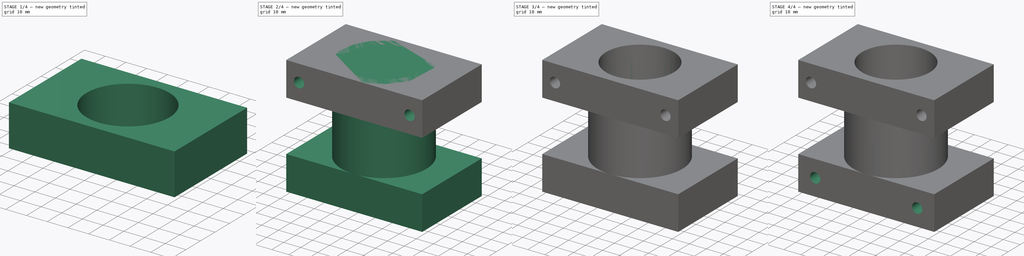
[diagram: build sequence overview — one tinted view per stage of 4, left to right]
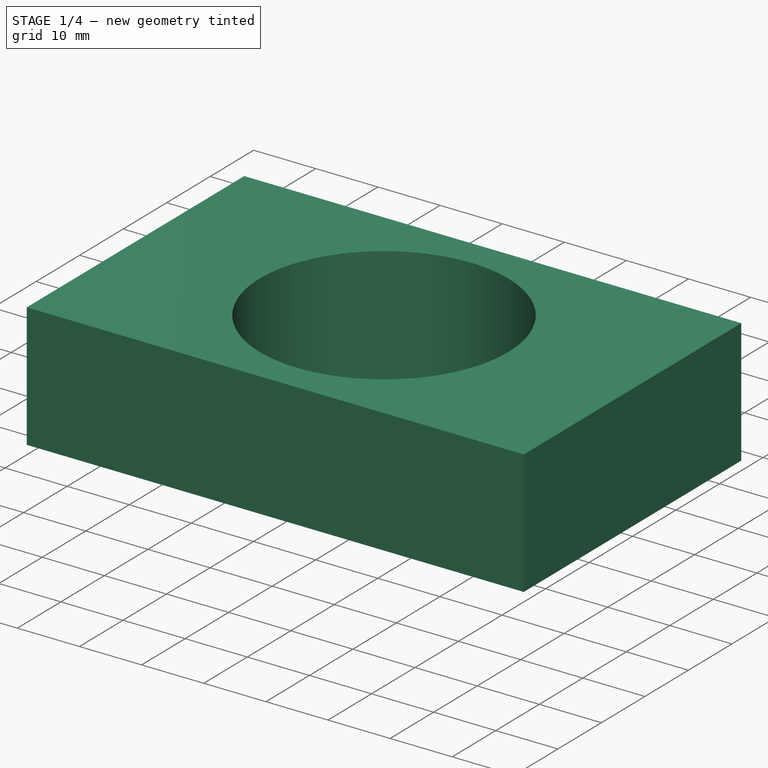
[diagram: stage 1 of 4 — iso view after this stage's code; geometry added in this stage tinted green]
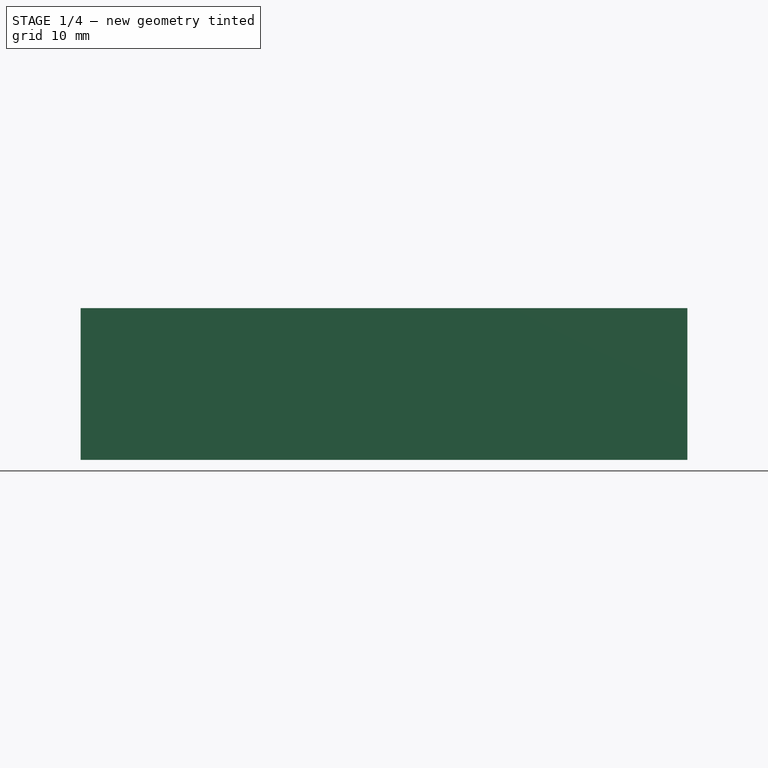
[diagram: stage 1 of 4 — front view after this stage's code; geometry added in this stage tinted green]
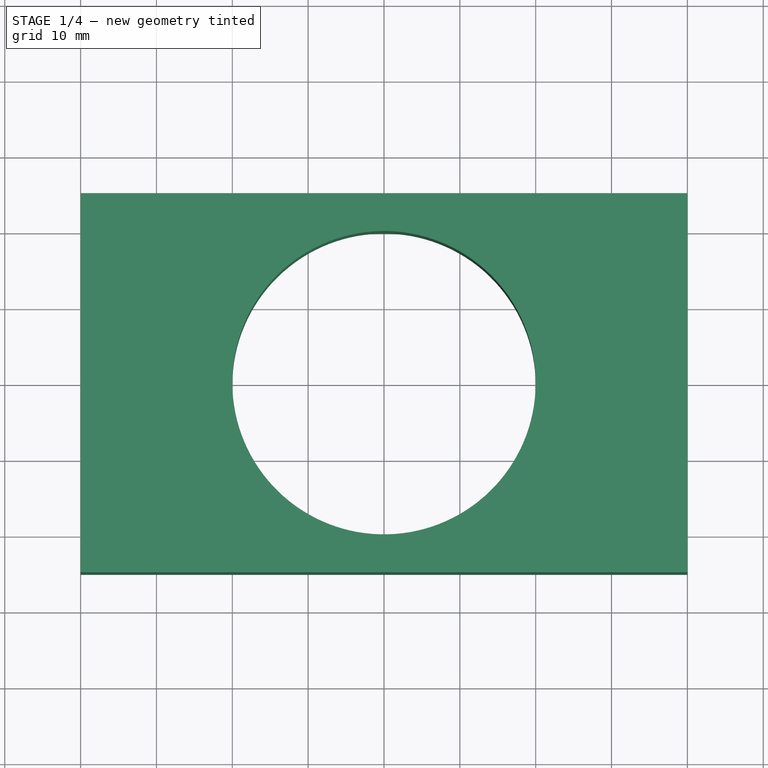
[diagram: stage 1 of 4 — top view after this stage's code; geometry added in this stage tinted green]
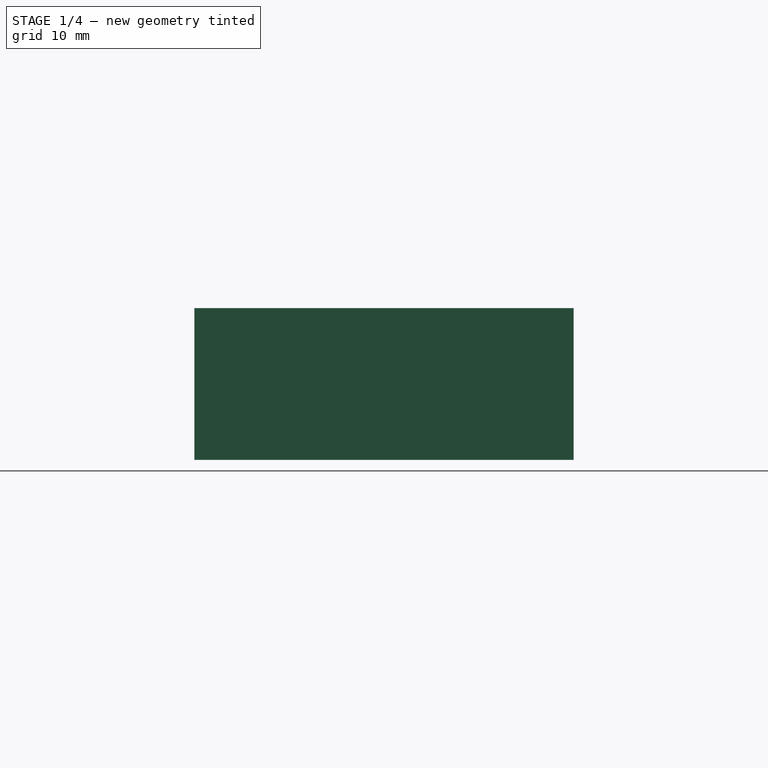
[diagram: stage 1 of 4 — right view after this stage's code; geometry added in this stage tinted green]
FCSTD DOCUMENT  (FreeCAD 0.16R6712 (Git))
Label: motor_case
License: All rights reserved
LicenseURL: http://en.wikipedia.org/wiki/All_rights_reserved
objects: Part::Cut×3, Sketcher::SketchObject×3, PartDesign::Pocket×3, Part::Cylinder×2, Part::Box×2, Part::Fuse×1
note: 17 computed .brp shape members not serialized (recipe doc carries the construction recipe); baked Part::Feature solids carry a one-line shape summary decoded from their .brp

FEATURE [Part::Cylinder] Cylinder
  Angle = 360
  Height = 60
  Placement = pos=(0,0,10) rot=(0,0,1;0rad)
  Radius = 20
FEATURE [Part::Box] Box001  label="Cube001"
  Height = 20
  Length = 80
  Placement = pos=(-40,-25,50) rot=(0,0,1;0rad)
  Width = 50
FEATURE [Part::Cut] Cut002
  Base = -> Box001
  Tool = -> Cylinder
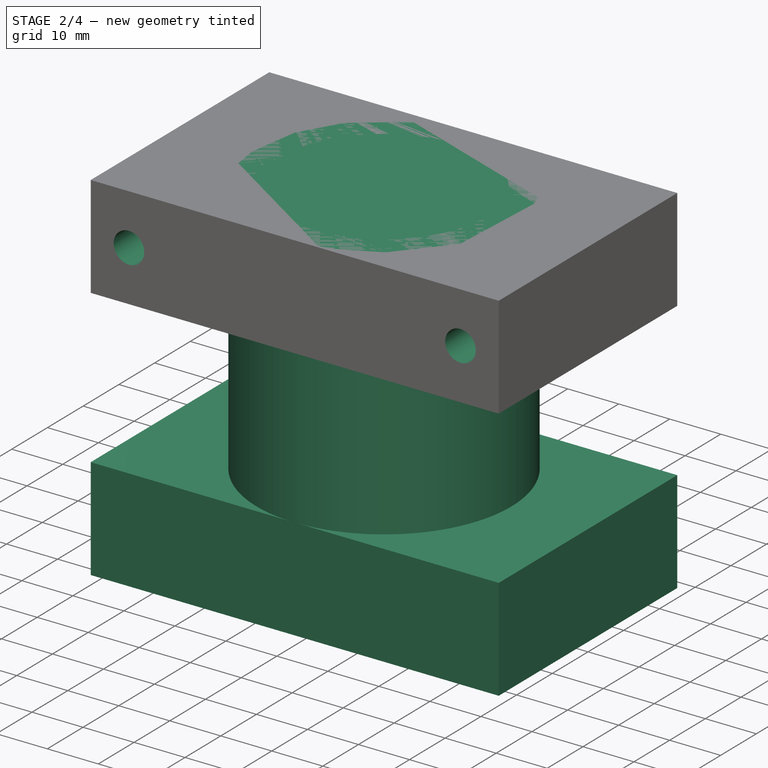
[diagram: stage 2 of 4 — iso view after this stage's code; geometry added in this stage tinted green]
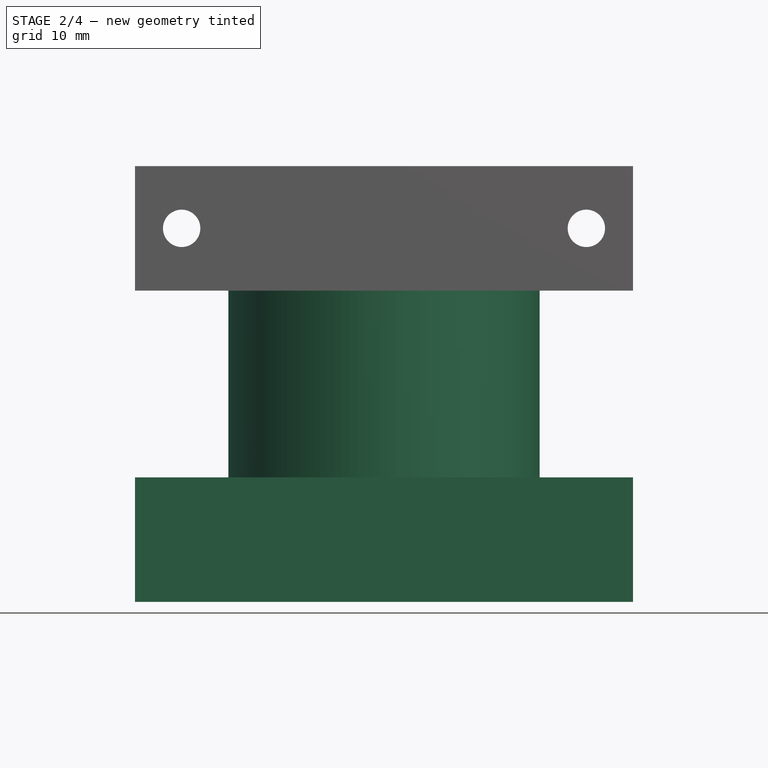
[diagram: stage 2 of 4 — front view after this stage's code; geometry added in this stage tinted green]
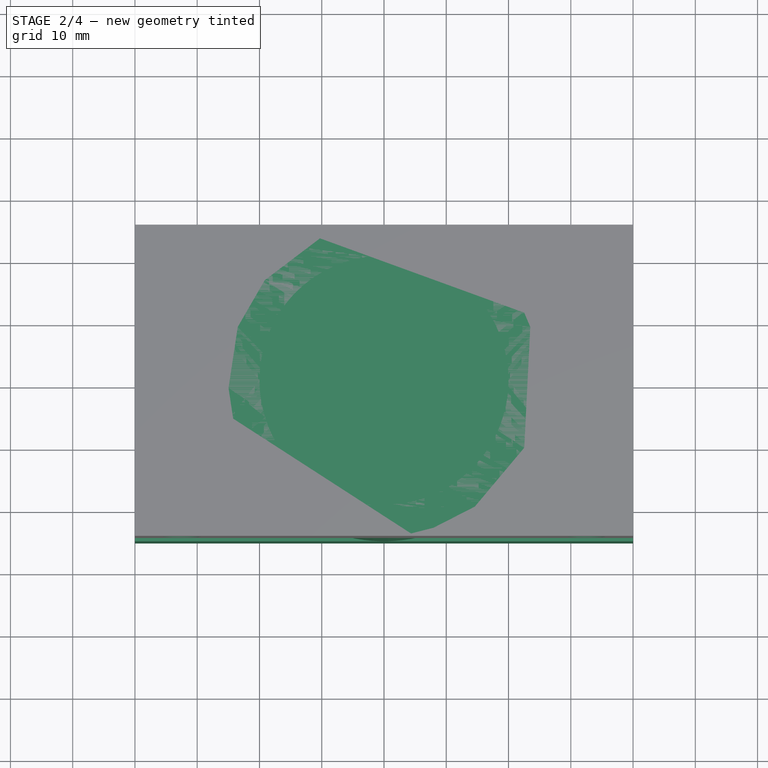
[diagram: stage 2 of 4 — top view after this stage's code; geometry added in this stage tinted green]
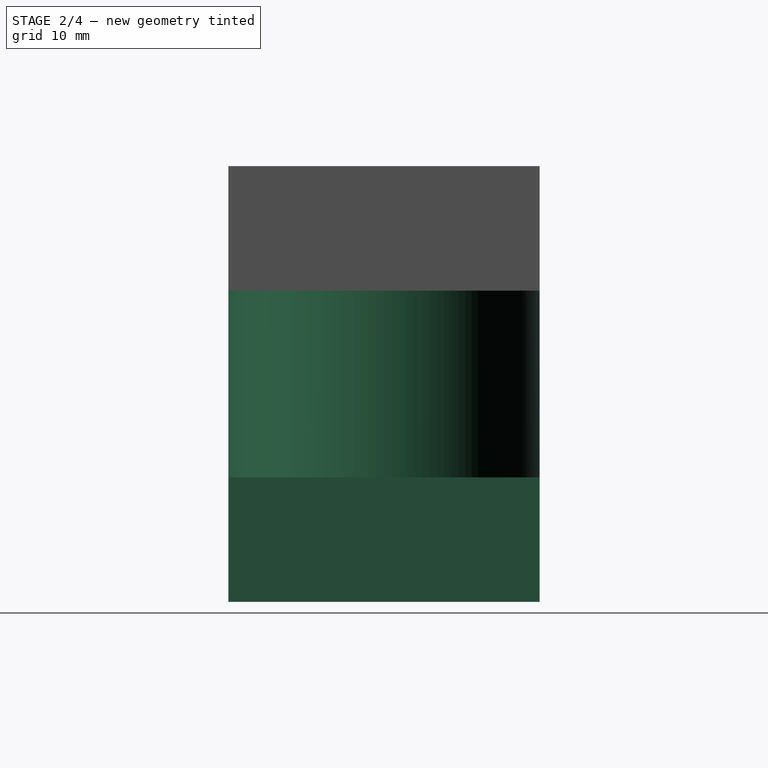
[diagram: stage 2 of 4 — right view after this stage's code; geometry added in this stage tinted green]
FEATURE [Part::Cylinder] Cylinder001
  Angle = 360
  Height = 70
  Radius = 25
FEATURE [Part::Box] Box  label="Cube"
  Height = 20
  Length = 80
  Placement = pos=(-40,-25,0) rot=(0,0,1;0rad)
  Width = 50
FEATURE [Sketcher::SketchObject] Sketch002
  ExternalGeometry = -> [Cut002]
  Placement = pos=(0,-25,0) rot=(1,0,0;1.5708rad)
  Support = -> Cut002 [Face2]
  sketch-geometry (2):
    g0: Circle CenterX=-32.5 CenterY=60 CenterZ=0 NormalX=0 NormalY=0 NormalZ=1 Radius=3
    g1: Circle CenterX=32.5 CenterY=60 CenterZ=0 NormalX=0 NormalY=0 NormalZ=1 Radius=3
  constraints (6):
    c: DistanceX(g-4,g0) = 7.5
    c: DistanceY(g0,g-4) = 10
    c: Radius(g0) = 3
    c: DistanceX(g1,g-6) = 7.5
    c: DistanceY(g1,g-6) = 10
    c: Radius(g1) = 3
FEATURE [PartDesign::Pocket] Pocket002
  Length = 5
  Sketch = -> Sketch002
  Type = 1
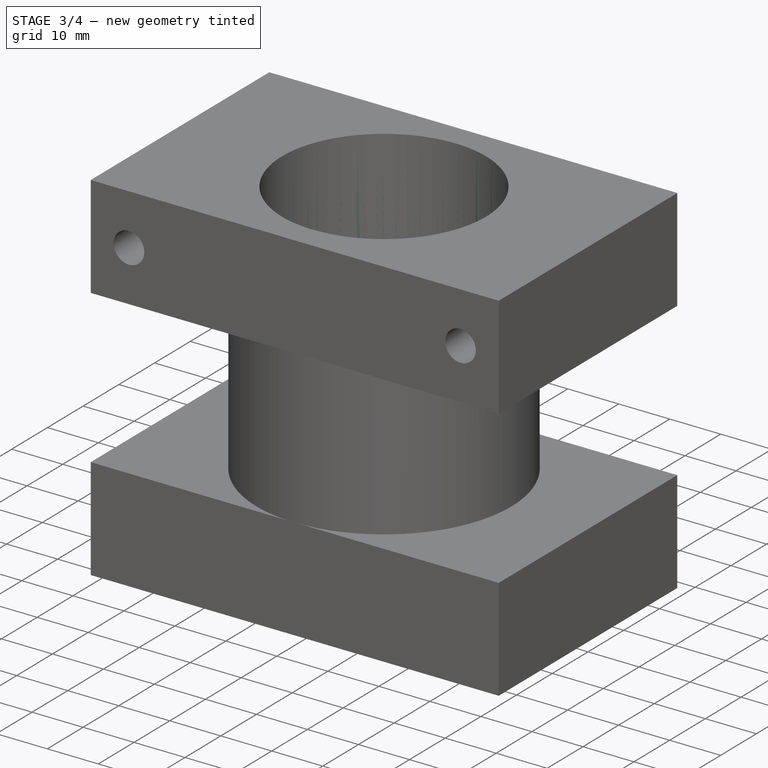
[diagram: stage 3 of 4 — iso view after this stage's code; geometry added in this stage tinted green]
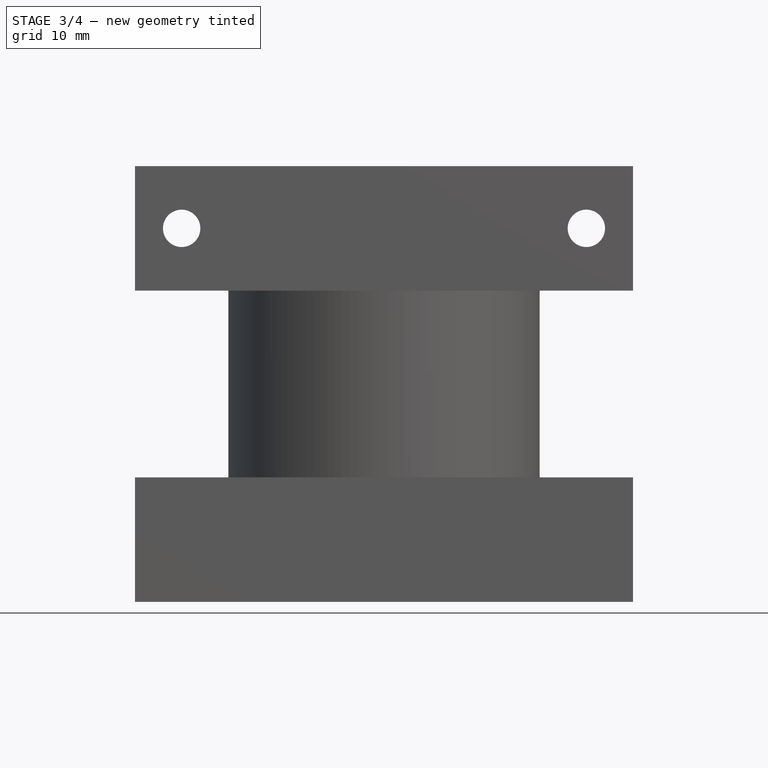
[diagram: stage 3 of 4 — front view after this stage's code; geometry added in this stage tinted green]
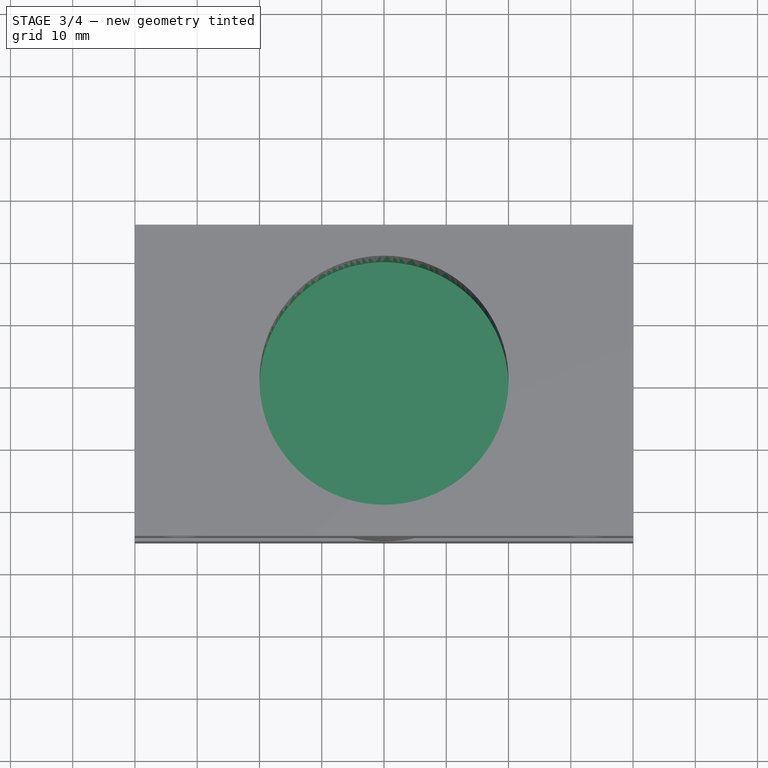
[diagram: stage 3 of 4 — top view after this stage's code; geometry added in this stage tinted green]
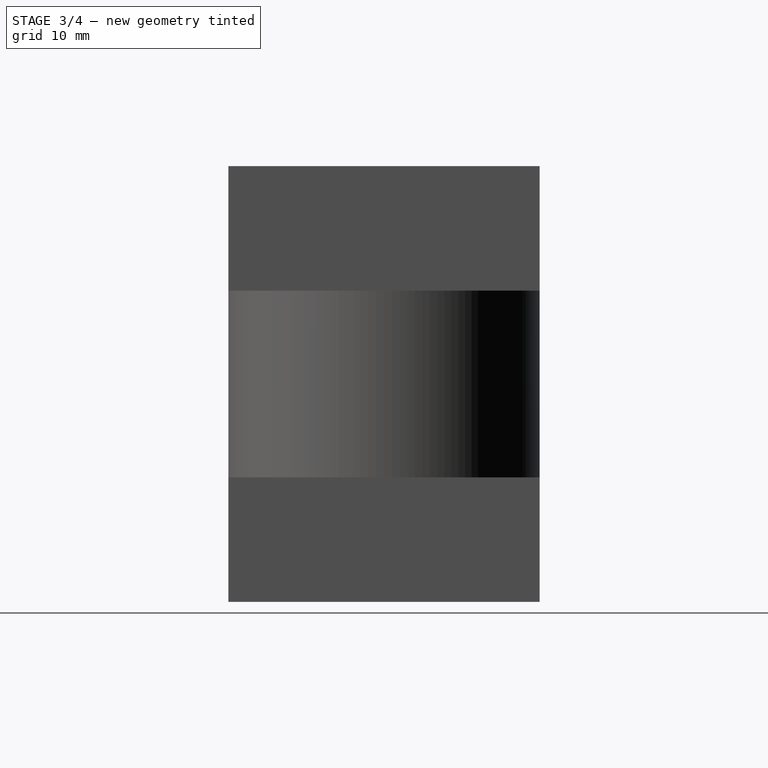
[diagram: stage 3 of 4 — right view after this stage's code; geometry added in this stage tinted green]
FEATURE [Part::Cut] Cut
  Base = -> Cylinder001
  Tool = -> Cylinder
FEATURE [Part::Cut] Cut001
  Base = -> Box
  Tool = -> Cylinder001
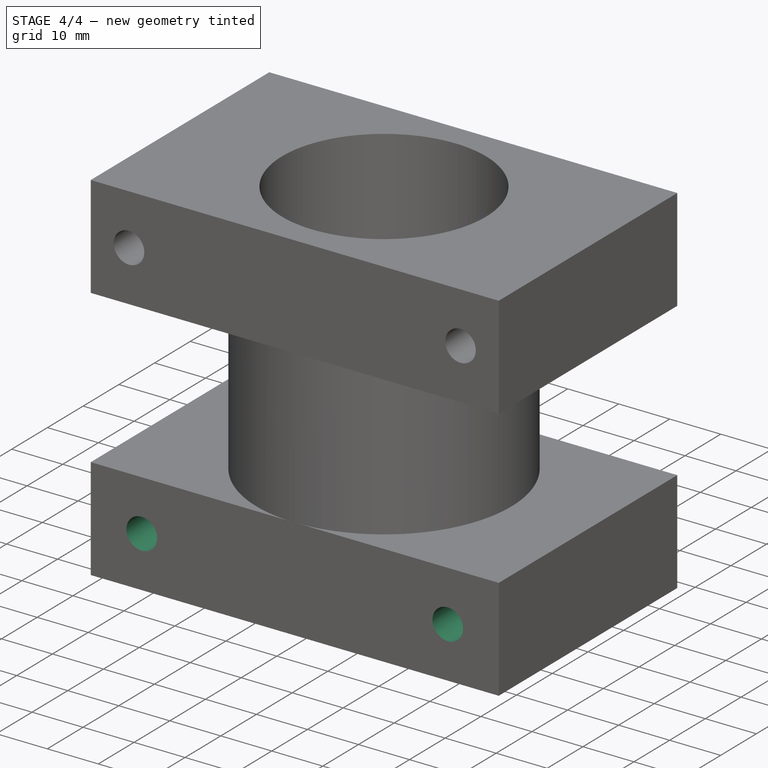
[diagram: stage 4 of 4 — iso view after this stage's code; geometry added in this stage tinted green]
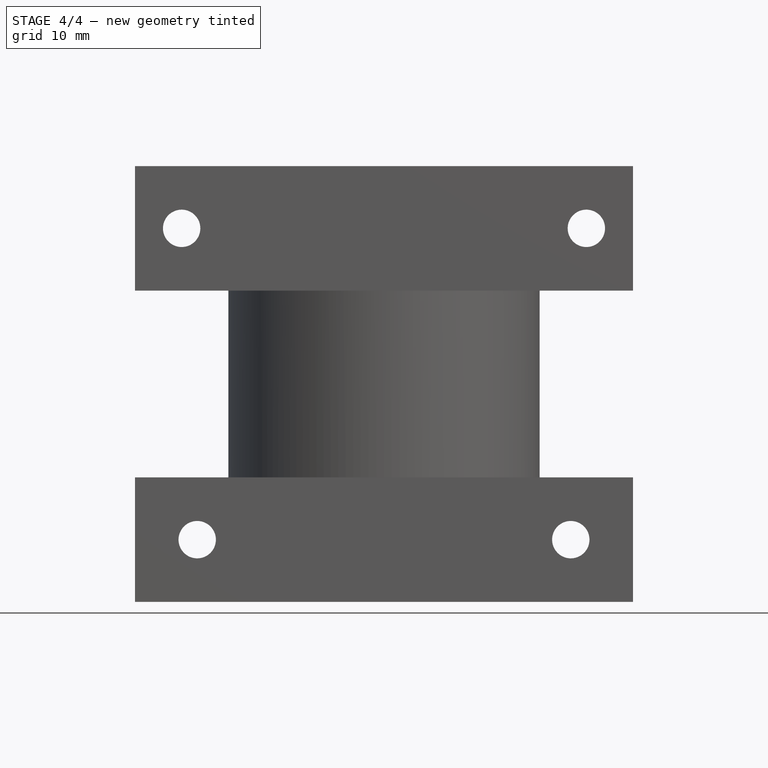
[diagram: stage 4 of 4 — front view after this stage's code; geometry added in this stage tinted green]
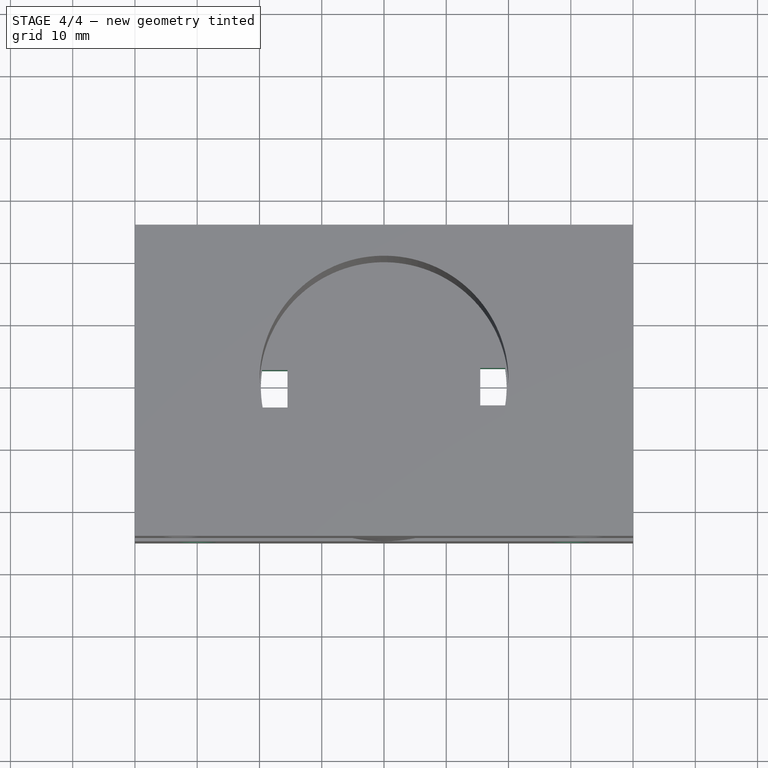
[diagram: stage 4 of 4 — top view after this stage's code; geometry added in this stage tinted green]
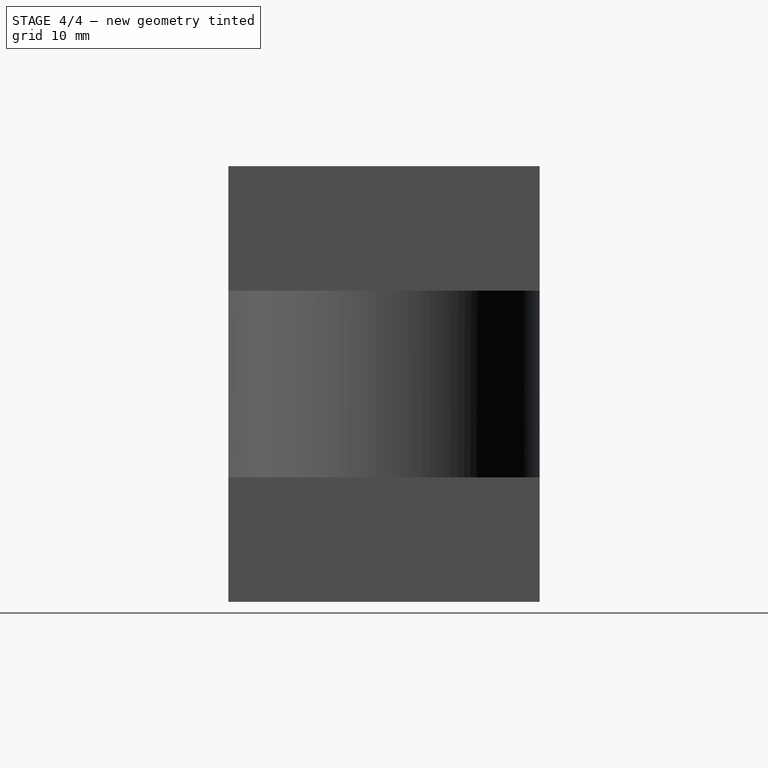
[diagram: stage 4 of 4 — right view after this stage's code; geometry added in this stage tinted green]
FEATURE [Part::Fuse] Fusion
  Base = -> Cut
  Tool = -> Cut001
FEATURE [Sketcher::SketchObject] Sketch
  ExternalGeometry = -> [Fusion]
  Placement = pos=(0,-25,0) rot=(1,0,0;1.5708rad)
  Support = -> Fusion [Face12]
  sketch-geometry (2):
    g0: Circle CenterX=-30 CenterY=10 CenterZ=0 NormalX=0 NormalY=0 NormalZ=1 Radius=3
    g1: Circle CenterX=30 CenterY=10 CenterZ=0 NormalX=0 NormalY=0 NormalZ=1 Radius=3
  constraints (2):
    c: Radius(g0) = 3
    c: Radius(g1) = 3
FEATURE [PartDesign::Pocket] Pocket
  Length = 5
  Sketch = -> Sketch
  Type = 1
FEATURE [Sketcher::SketchObject] Sketch001
  Placement = pos=(0,0,10) rot=(0,0,1;0rad)
  Support = -> Pocket [Face16]
  sketch-geometry (8):
    g0: LineSegment StartX=-19.5988 StartY=2.66333 StartZ=0 EndX=-15.4954 EndY=2.66333 EndZ=0
    g1: LineSegment StartX=-15.4954 StartY=2.66333 StartZ=0 EndX=-15.4954 EndY=-3.33667 EndZ=0
    g2: LineSegment StartX=-15.4954 StartY=-3.33667 StartZ=0 EndX=-19.4954 EndY=-3.33667 EndZ=0
    g3: LineSegment StartX=19.4654 StartY=3 StartZ=0 EndX=15.4654 EndY=3 EndZ=0
    g4: LineSegment StartX=15.4654 StartY=3 StartZ=0 EndX=15.4654 EndY=-3 EndZ=0
    g5: LineSegment StartX=15.4654 StartY=-3 StartZ=0 EndX=19.4654 EndY=-3 EndZ=0
    g6: ArcOfCircle CenterX=0 CenterY=0 CenterZ=0 NormalX=0 NormalY=0 NormalZ=1 Radius=19.7789 StartAngle=3.00653 EndAngle=3.3111
    g7: ArcOfCircle CenterX=0 CenterY=0 CenterZ=0 NormalX=0 NormalY=0 NormalZ=1 Radius=19.6952 StartAngle=6.13027 EndAngle=6.4361
  constraints (21):
    c: Coincident(g0,g1)
    c: Coincident(g1,g2)
    c: Horizontal(g0)
    c: Horizontal(g2)
    c: Vertical(g1)
    c: Coincident(g3,g4)
    c: Coincident(g4,g5)
    c: Horizontal(g3)
    c: Horizontal(g5)
    c: Vertical(g4)
    c: DistanceY(g1,g1) = 6
    c: DistanceY(g4,g4) = 6
    c: DistanceX(g2,g2) = 4
    c: DistanceX(g5,g5) = 4
    c: Coincident(g6,g-1)
    c: Coincident(g6,g0)
    c: Coincident(g6,g2)
    c: Coincident(g7,g-1)
    c: Coincident(g7,g3)
    c: Coincident(g7,g5)
    c: DistanceY(g4,g-1) = 3
FEATURE [PartDesign::Pocket] Pocket001
  Length = 5
  Sketch = -> Sketch001
  Type = 1
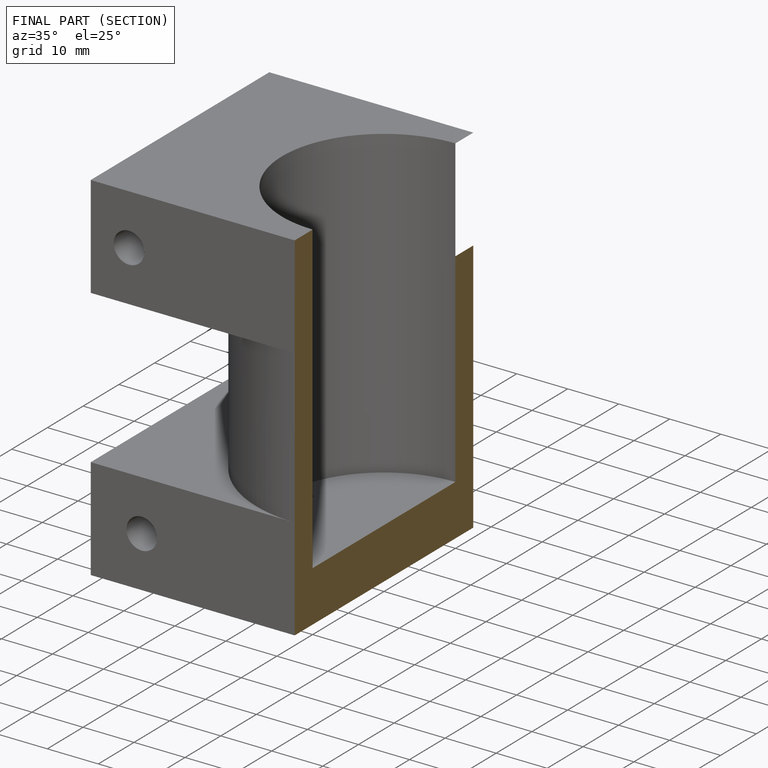
[diagram: finished part — half-section view (interior)]
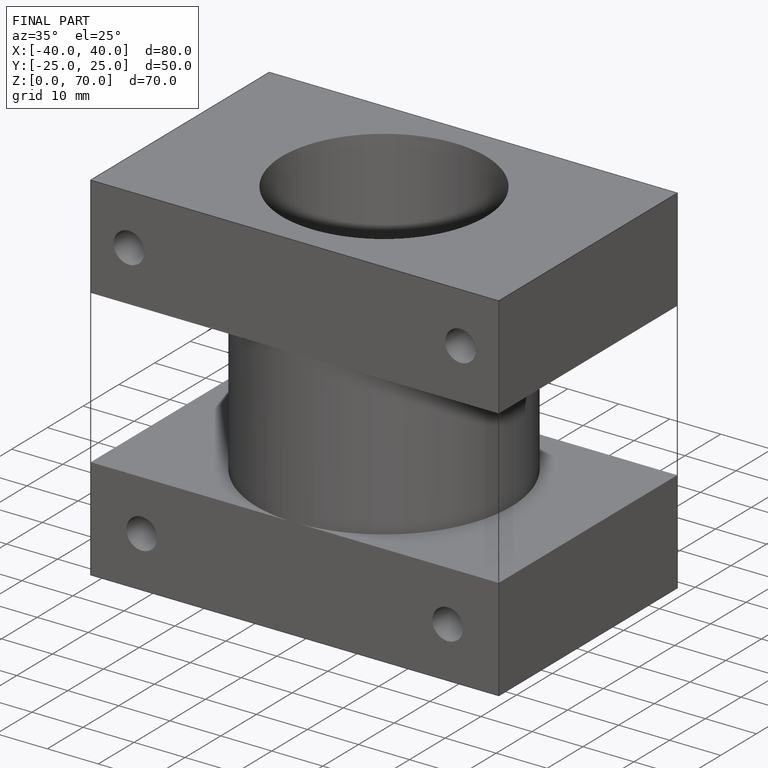
[diagram: finished part — iso view with bounding-box wireframe]
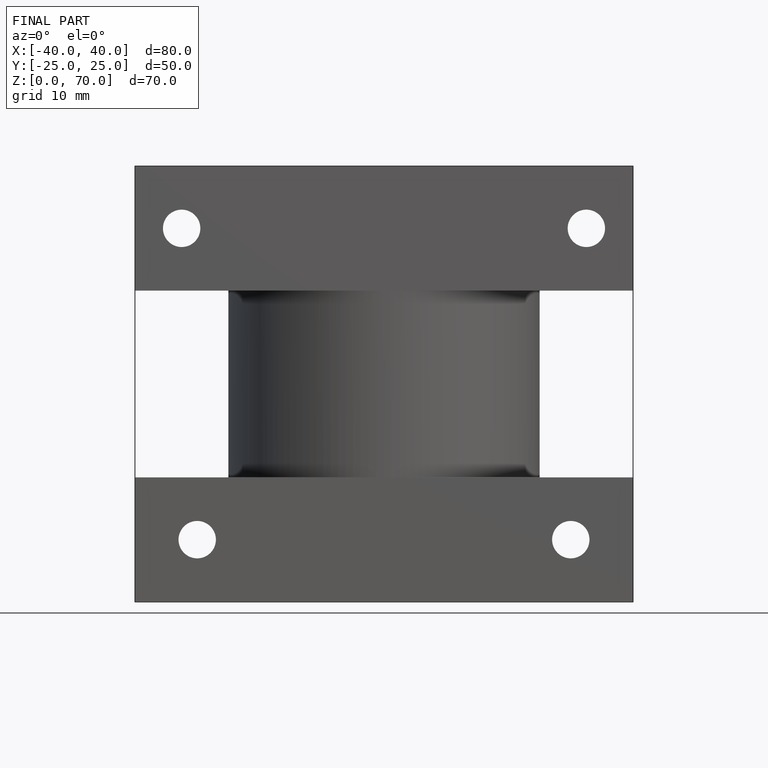
[diagram: finished part — front view with bounding-box wireframe]
